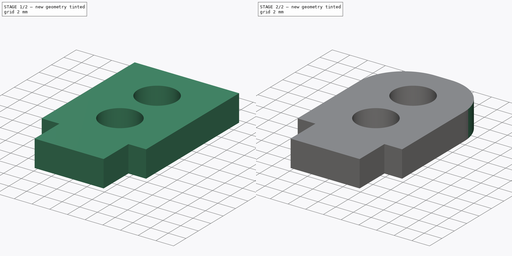
[diagram: build sequence overview — one tinted view per stage of 2, left to right]
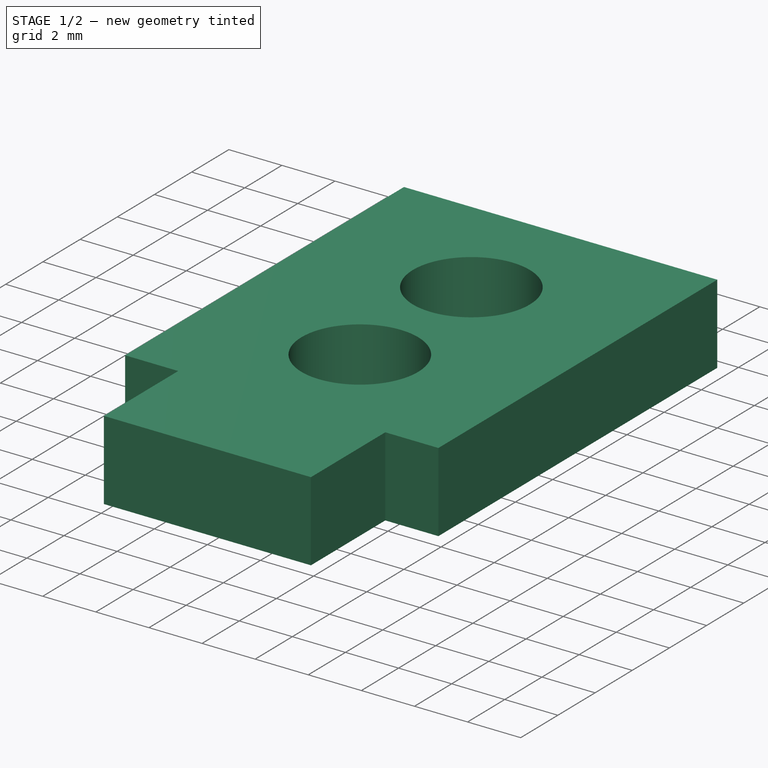
[diagram: stage 1 of 2 — iso view after this stage's code; geometry added in this stage tinted green]
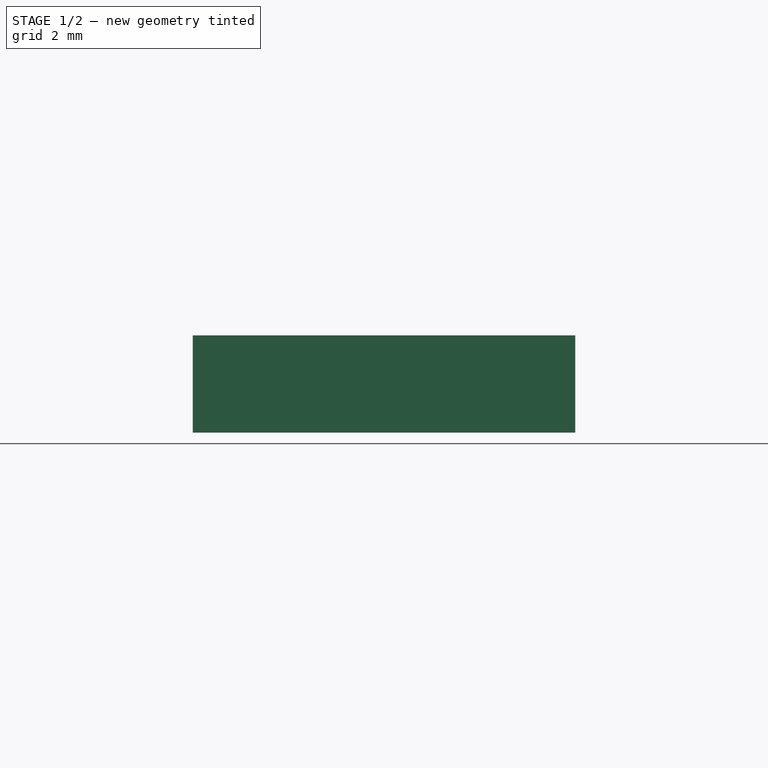
[diagram: stage 1 of 2 — front view after this stage's code; geometry added in this stage tinted green]
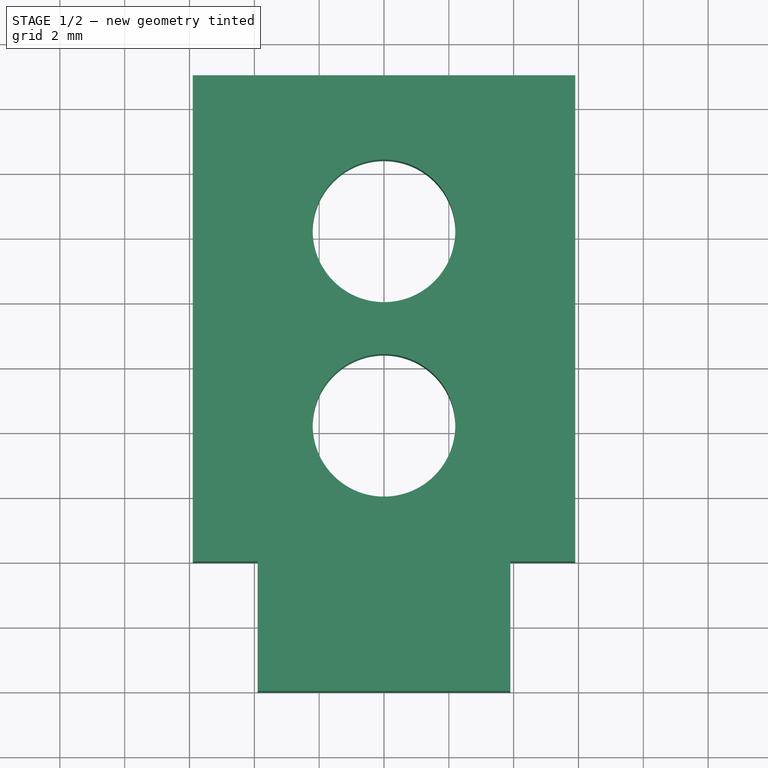
[diagram: stage 1 of 2 — top view after this stage's code; geometry added in this stage tinted green]
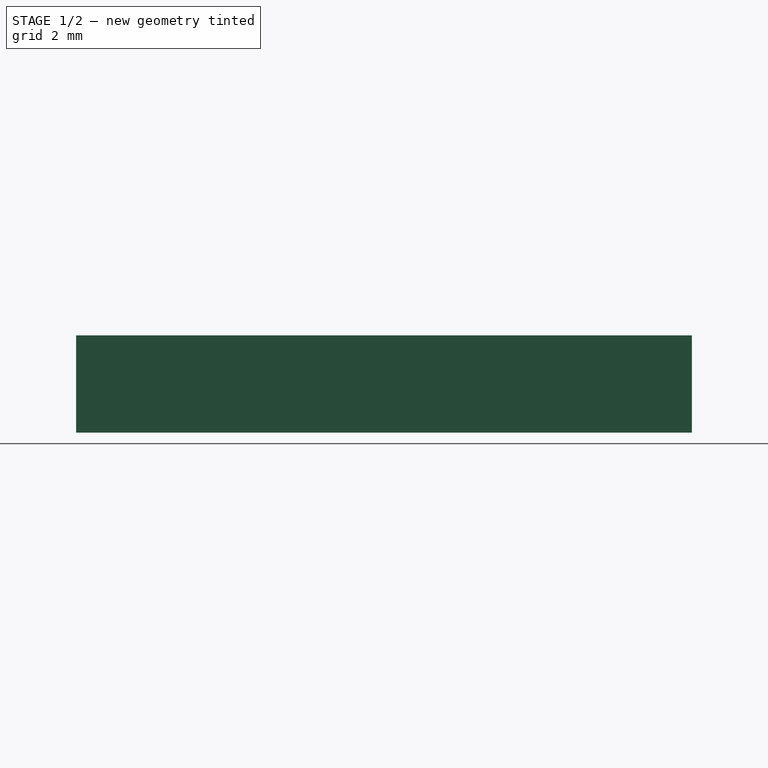
[diagram: stage 1 of 2 — right view after this stage's code; geometry added in this stage tinted green]
FCSTD DOCUMENT  (FreeCAD 0.15R4671 (Git))
Label: TendonRoutingPillar
License: All rights reserved
LicenseURL: http://en.wikipedia.org/wiki/All_rights_reserved
objects: Sketcher::SketchObject×1, PartDesign::Pad×1, PartDesign::Fillet×1
note: 4 computed .brp shape members not serialized (recipe doc carries the construction recipe); baked Part::Feature solids carry a one-line shape summary decoded from their .brp

FEATURE [Sketcher::SketchObject] Sketch001
  sketch-geometry (10):
    g0: LineSegment StartX=3.9 StartY=-6 StartZ=0 EndX=-3.9 EndY=-6 EndZ=0
    g1: LineSegment StartX=-3.9 StartY=-6 StartZ=0 EndX=-3.9 EndY=-2 EndZ=0
    g2: LineSegment StartX=-3.9 StartY=-2 StartZ=0 EndX=-5.9 EndY=-2 EndZ=0
    g3: LineSegment StartX=-5.9 StartY=-2 StartZ=0 EndX=-5.9 EndY=13 EndZ=0
    g4: LineSegment StartX=-5.9 StartY=13 StartZ=0 EndX=5.9 EndY=13 EndZ=0
    g5: LineSegment StartX=5.9 StartY=13 StartZ=0 EndX=5.9 EndY=-2 EndZ=0
    g6: LineSegment StartX=5.9 StartY=-2 StartZ=0 EndX=3.9 EndY=-2 EndZ=0
    g7: LineSegment StartX=3.9 StartY=-2 StartZ=0 EndX=3.9 EndY=-6 EndZ=0
    g8: Circle CenterX=0 CenterY=8.2 CenterZ=0 NormalX=0 NormalY=0 NormalZ=1 Radius=2.2
    g9: Circle CenterX=0 CenterY=2.2 CenterZ=0 NormalX=0 NormalY=0 NormalZ=1 Radius=2.2
  constraints (29):
    c: Horizontal(g0)
    c: Coincident(g0,g1)
    c: Vertical(g1)
    c: Coincident(g1,g2)
    c: Coincident(g2,g3)
    c: Vertical(g3)
    c: Coincident(g3,g4)
    c: Horizontal(g4)
    c: Coincident(g4,g5)
    c: Coincident(g5,g6)
    c: Horizontal(g6)
    c: Coincident(g6,g7)
    c: Coincident(g7,g0)
    c: Vertical(g7)
    c: Horizontal(g2)
    c: Vertical(g5)
    c: PointOnObject(g9,g-2)
    c: PointOnObject(g8,g-2)
    c: Equal(g8,g9)
    c: Tangent(g9,g-1)
    c: DistanceY(g-1,g1) = -2
    c: Symmetric(g1,g6,g-2)
    c: Equal(g2,g6)
    c: DistanceY(g7) = -4
    c: DistanceX(g0) = -7.8
    c: Radius(g9) = 2.2
    c: DistanceY(g5) = -15
    c: DistanceY(g8,g9) = -6
    c: DistanceX(g4) = 11.8
FEATURE [PartDesign::Pad] Pad
  Length = 3
  Length2 = 100
  Sketch = -> Sketch001
  Type = 0
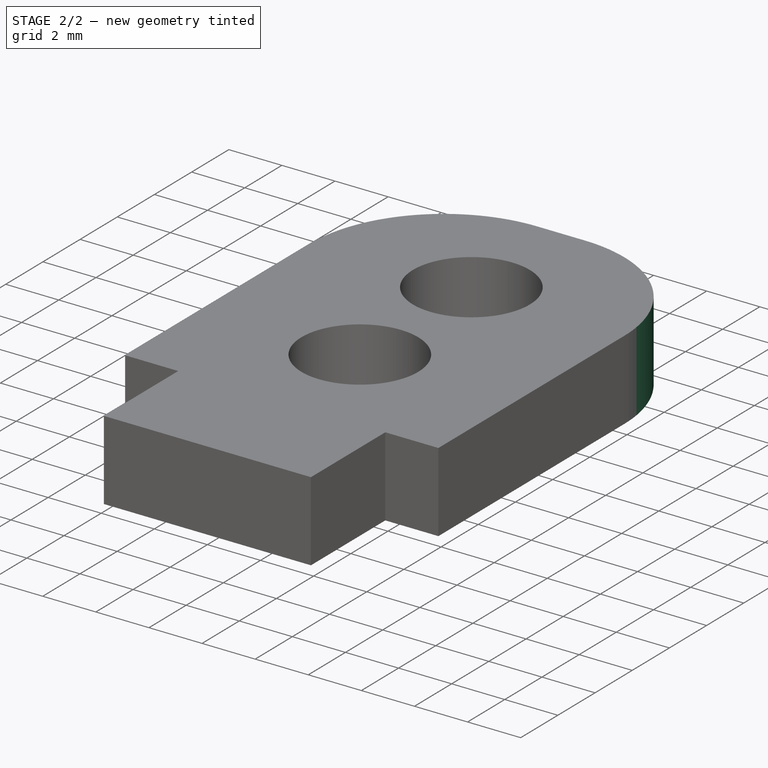
[diagram: stage 2 of 2 — iso view after this stage's code; geometry added in this stage tinted green]
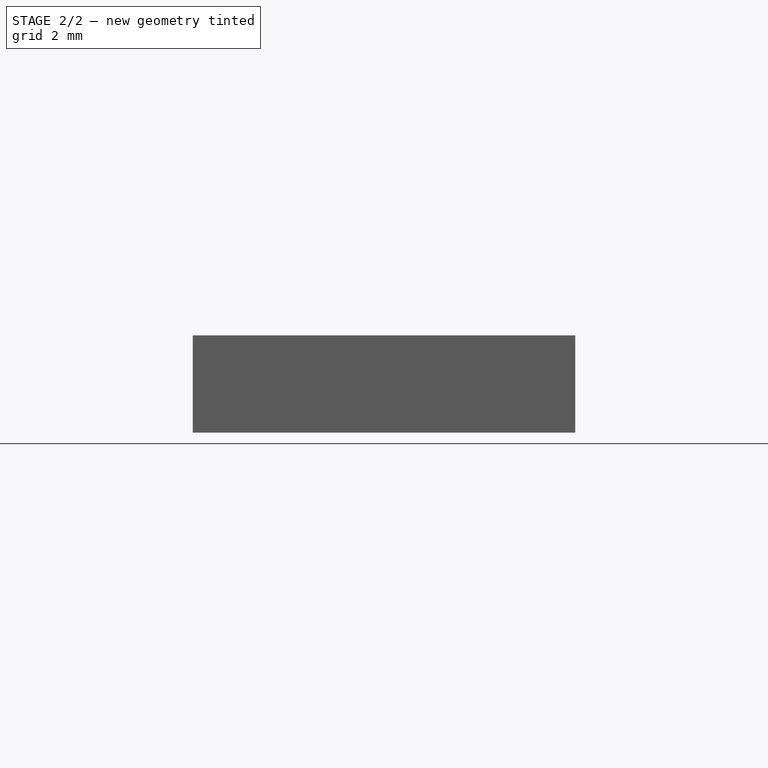
[diagram: stage 2 of 2 — front view after this stage's code; geometry added in this stage tinted green]
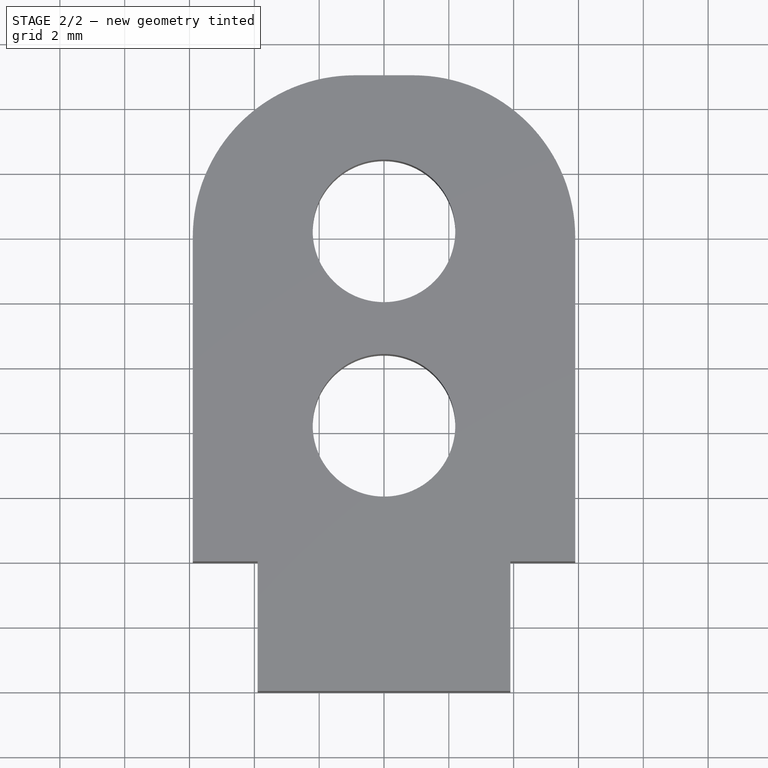
[diagram: stage 2 of 2 — top view after this stage's code; geometry added in this stage tinted green]
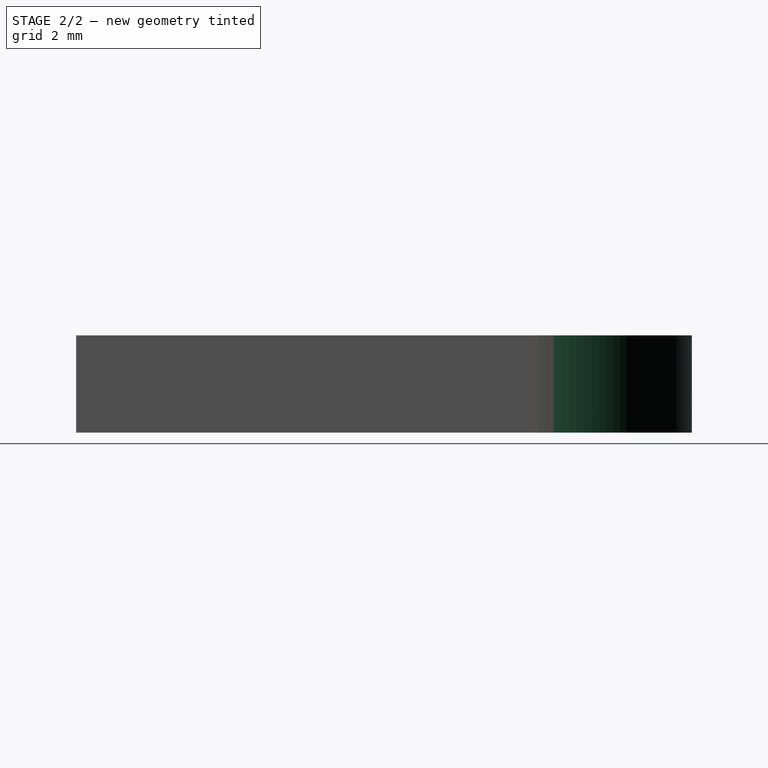
[diagram: stage 2 of 2 — right view after this stage's code; geometry added in this stage tinted green]
FEATURE [PartDesign::Fillet] Fillet
  Base = -> Pad [Edge14,Edge11]
  Radius = 5
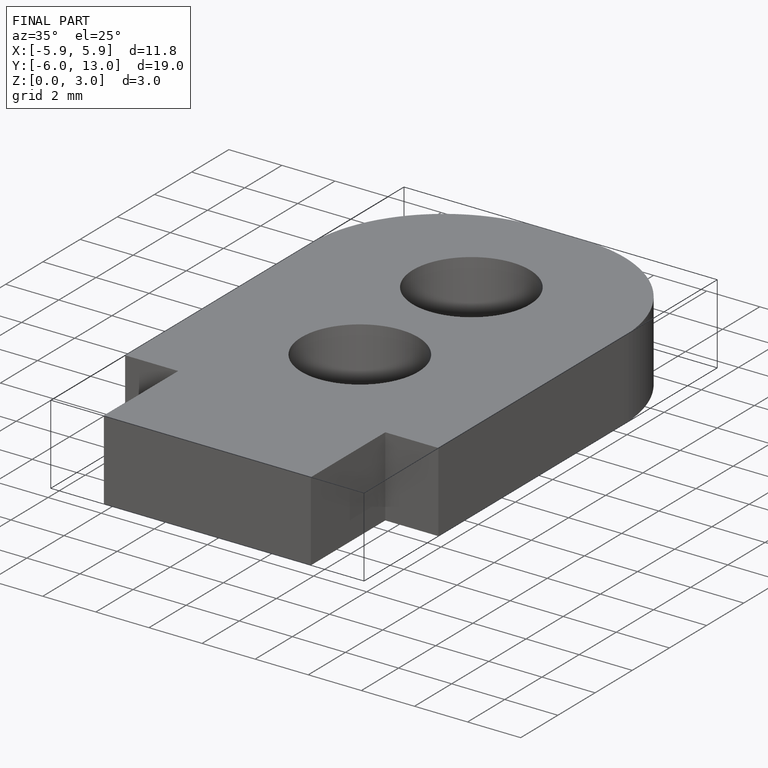
[diagram: finished part — iso view with bounding-box wireframe]
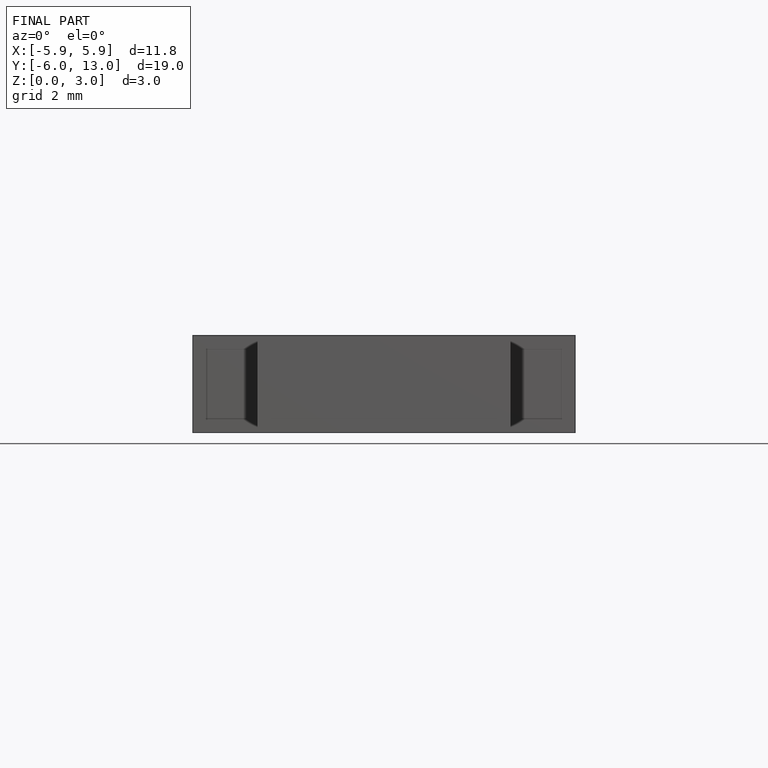
[diagram: finished part — front view with bounding-box wireframe]
